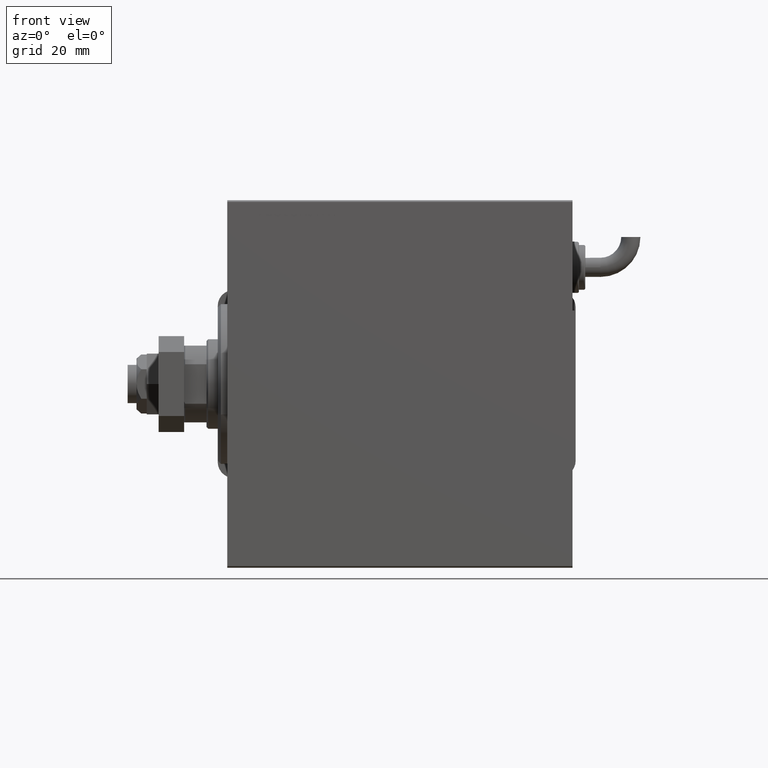
[diagram: clean part render]
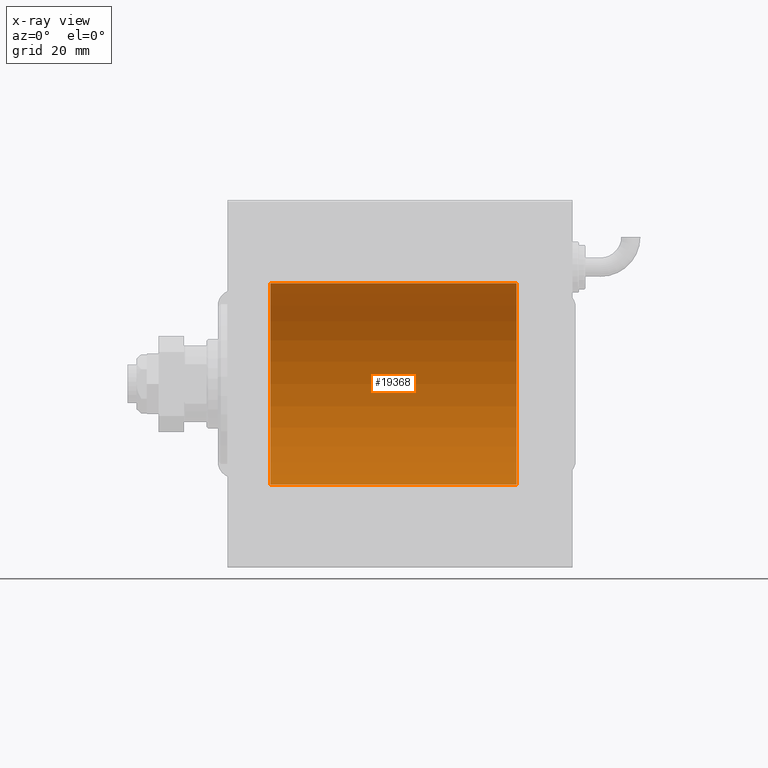
[diagram: x-ray — body ghosted, one internal face saturated and labeled with its STEP entity id]
A machine part, front view, then the same camera in x-ray: the body is ghosted and one INTERNAL B-rep face — a face not visible from any outside direction — is saturated and labeled: STEP entity #19368.
In plain terms, the highlighted cylindrical surface (partial cylindrical patch) has radius 31.5 mm, axis along (-1, -0, -0).
Its self-contained STEP definition (entity closure, byte-faithful):
#279 = CARTESIAN_POINT ( 'NONE',  ( 13.49999999999999822, 0.000000000000000000, 0.000000000000000000 ) ) ;
#434 = DIRECTION ( 'NONE',  ( -1.000000000000000000, -0.000000000000000000, -0.000000000000000000 ) ) ;
#1120 = CARTESIAN_POINT ( 'NONE',  ( 90.50000000000000000, 0.000000000000000000, 31.50000000000000000 ) ) ;
#2157 = CIRCLE ( 'NONE', #35839, 31.50000000000000000 ) ;
#2938 = CARTESIAN_POINT ( 'NONE',  ( 13.49999999999999822, 0.000000000000000000, 31.50000000000000000 ) ) ;
#2952 = CARTESIAN_POINT ( 'NONE',  ( 13.49999999999999822, 3.857637417314162689E-15, -31.50000000000000000 ) ) ;
#3692 = CYLINDRICAL_SURFACE ( 'NONE', #8016, 31.50000000000000000 ) ;
#3864 = DIRECTION ( 'NONE',  ( -1.000000000000000000, 0.000000000000000000, 0.000000000000000000 ) ) ;
#4574 = CARTESIAN_POINT ( 'NONE',  ( 90.50000000000000000, 3.857637417314162689E-15, -31.50000000000000000 ) ) ;
#5913 = VERTEX_POINT ( 'NONE', #1120 ) ;
#8016 = AXIS2_PLACEMENT_3D ( 'NONE', #31705, #58524, #41044 ) ;
#8925 = EDGE_CURVE ( 'NONE', #5913, #42060, #54946, .T. ) ;
#15661 = EDGE_CURVE ( 'NONE', #5913, #30649, #41995, .T. ) ;
#17110 = CARTESIAN_POINT ( 'NONE',  ( 90.50000000000000000, 0.000000000000000000, 0.000000000000000000 ) ) ;
#17709 = EDGE_CURVE ( 'NONE', #30649, #43769, #2157, .T. ) ;
#19295 = EDGE_LOOP ( 'NONE', ( #57060, #52000, #31020, #57760 ) ) ;
#19368 = ADVANCED_FACE ( 'NONE', ( #27469 ), #3692, .F. ) ;
#27425 = VECTOR ( 'NONE', #33051, 1000.000000000000000 ) ;
#27469 = FACE_OUTER_BOUND ( 'NONE', #19295, .T. ) ;
#30649 = VERTEX_POINT ( 'NONE', #2938 ) ;
#31020 = ORIENTED_EDGE ( 'NONE', *, *, #15661, .T. ) ;
#31705 = CARTESIAN_POINT ( 'NONE',  ( 90.50000000000000000, 0.000000000000000000, 0.000000000000000000 ) ) ;
#33051 = DIRECTION ( 'NONE',  ( -1.000000000000000000, -0.000000000000000000, -0.000000000000000000 ) ) ;
#35560 = DIRECTION ( 'NONE',  ( -1.000000000000000000, 0.000000000000000000, 0.000000000000000000 ) ) ;
#35733 = EDGE_CURVE ( 'NONE', #42060, #43769, #55091, .T. ) ;
#35839 = AXIS2_PLACEMENT_3D ( 'NONE', #279, #35560, #53938 ) ;
#38623 = VECTOR ( 'NONE', #434, 1000.000000000000000 ) ;
#41044 = DIRECTION ( 'NONE',  ( 0.000000000000000000, 0.000000000000000000, 1.000000000000000000 ) ) ;
#41220 = CARTESIAN_POINT ( 'NONE',  ( 90.50000000000000000, 3.857637417314162689E-15, -31.50000000000000000 ) ) ;
#41995 = LINE ( 'NONE', #51046, #38623 ) ;
#42060 = VERTEX_POINT ( 'NONE', #4574 ) ;
#43769 = VERTEX_POINT ( 'NONE', #2952 ) ;
#46242 = AXIS2_PLACEMENT_3D ( 'NONE', #17110, #3864, #58991 ) ;
#51046 = CARTESIAN_POINT ( 'NONE',  ( 90.50000000000000000, 0.000000000000000000, 31.50000000000000000 ) ) ;
#52000 = ORIENTED_EDGE ( 'NONE', *, *, #8925, .F. ) ;
#53938 = DIRECTION ( 'NONE',  ( 0.000000000000000000, 0.000000000000000000, 1.000000000000000000 ) ) ;
#54946 = CIRCLE ( 'NONE', #46242, 31.50000000000000000 ) ;
#55091 = LINE ( 'NONE', #41220, #27425 ) ;
#57060 = ORIENTED_EDGE ( 'NONE', *, *, #35733, .F. ) ;
#57760 = ORIENTED_EDGE ( 'NONE', *, *, #17709, .T. ) ;
#58524 = DIRECTION ( 'NONE',  ( -1.000000000000000000, -0.000000000000000000, -0.000000000000000000 ) ) ;
#58991 = DIRECTION ( 'NONE',  ( 0.000000000000000000, 0.000000000000000000, 1.000000000000000000 ) ) ;